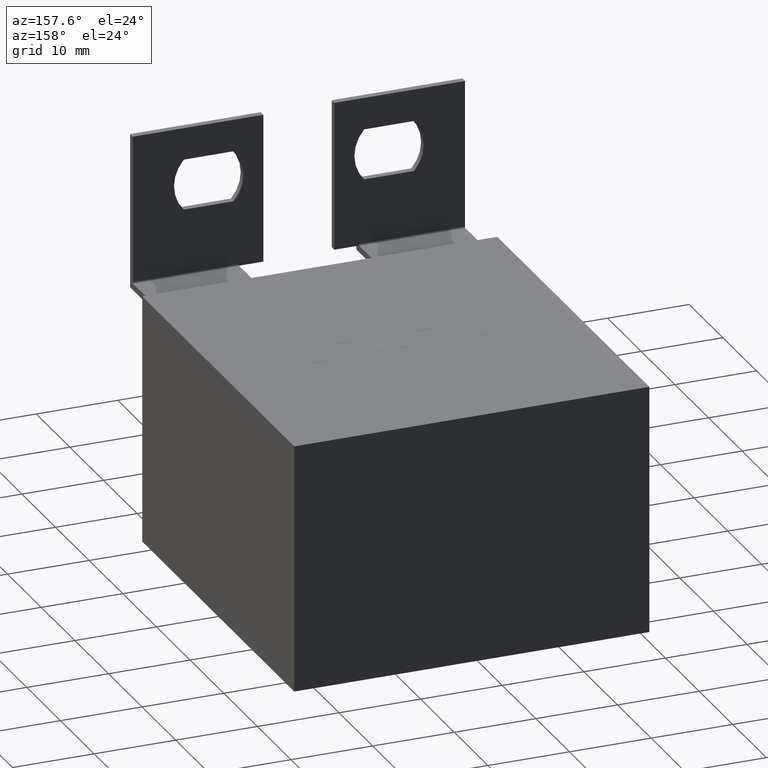
[diagram: clean part render]
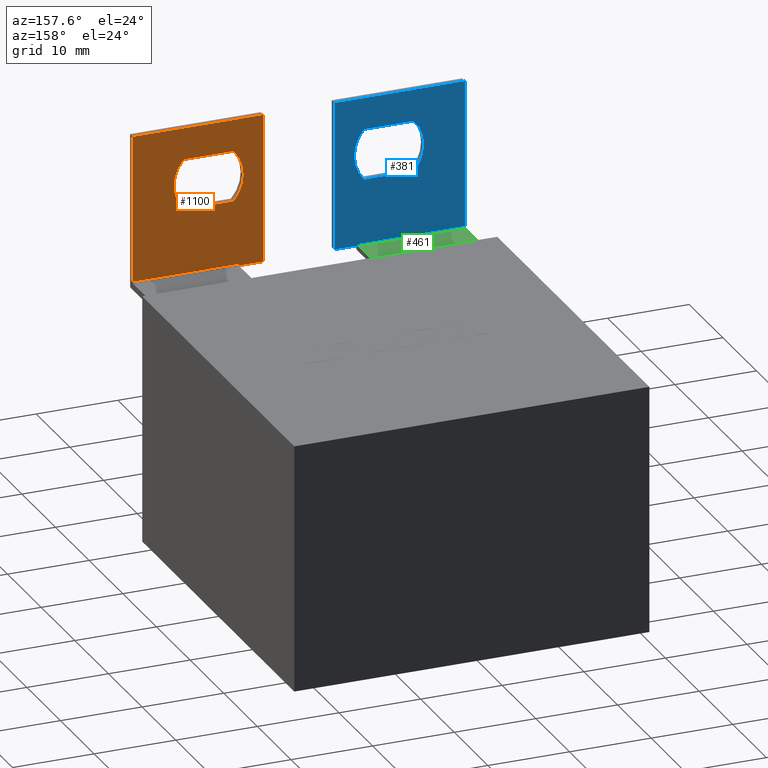
[diagram: same view with three faces highlighted in distinct colors, each labeled with its STEP entity id]
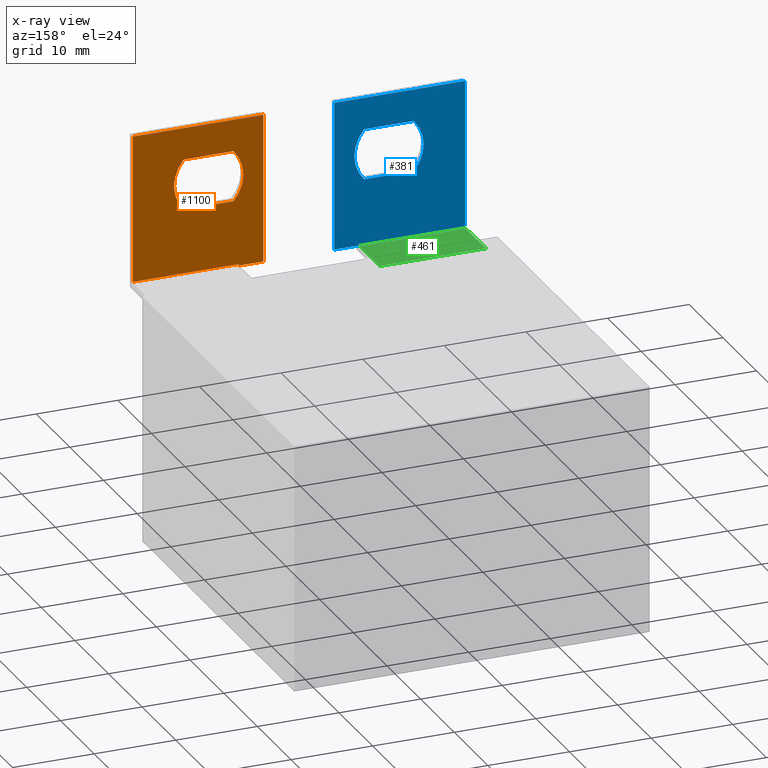
[diagram: x-ray of the same camera — body ghosted, the three highlighted faces saturated]
A machine part, auxiliary view with three faces highlighted in distinct colors.
The next image is the same camera in x-ray (body ghosted, the three faces saturated) — at least one of them is partly hidden behind the body in this view.
Their STEP definitions:

[orange] entity #1100 — the highlighted planar face has unit normal (0, 1, -0).
#14 = DIRECTION ( 'NONE',  ( 0.0000000000000000000, 1.000000000000000000, -0.0000000000000000000 ) ) ;
#19 = DIRECTION ( 'NONE',  ( 0.0000000000000000000, 0.0000000000000000000, -1.000000000000000000 ) ) ;
#24 = ORIENTED_EDGE ( 'NONE', *, *, #2436, .T. ) ;
#31 = AXIS2_PLACEMENT_3D ( 'NONE', #2444, #1611, #19 ) ;
#34 = DIRECTION ( 'NONE',  ( -0.0000000000000000000, -1.000000000000000000, -0.0000000000000000000 ) ) ;
#58 = ORIENTED_EDGE ( 'NONE', *, *, #3076, .F. ) ;
#80 = VECTOR ( 'NONE', #2003, 1000.000000000000000 ) ;
#167 = ORIENTED_EDGE ( 'NONE', *, *, #785, .T. ) ;
#221 = VERTEX_POINT ( 'NONE', #2238 ) ;
#263 = EDGE_CURVE ( 'NONE', #3337, #2440, #1299, .T. ) ;
#300 = ORIENTED_EDGE ( 'NONE', *, *, #507, .T. ) ;
#305 = CARTESIAN_POINT ( 'NONE',  ( 42.10000000000000900, -6.200000000000000200, 47.39999999999999900 ) ) ;
#445 = AXIS2_PLACEMENT_3D ( 'NONE', #305, #14, #3237 ) ;
#458 = CARTESIAN_POINT ( 'NONE',  ( 42.10000000000000900, -6.200000000000000200, 47.39999999999999900 ) ) ;
#507 = EDGE_CURVE ( 'NONE', #1280, #221, #3153, .T. ) ;
#554 = CARTESIAN_POINT ( 'NONE',  ( 35.84999999999999400, -6.200000000000000200, 37.29999999999999700 ) ) ;
#564 = DIRECTION ( 'NONE',  ( 0.0000000000000000000, 0.0000000000000000000, 1.000000000000000000 ) ) ;
#591 = FACE_OUTER_BOUND ( 'NONE', #1460, .T. ) ;
#607 = EDGE_CURVE ( 'NONE', #2243, #1280, #2029, .T. ) ;
#687 = CARTESIAN_POINT ( 'NONE',  ( 26.10000000000000500, -6.200000000000000200, 47.39999999999999900 ) ) ;
#706 = DIRECTION ( 'NONE',  ( -1.000000000000000000, 0.0000000000000000000, 0.0000000000000000000 ) ) ;
#738 = DIRECTION ( 'NONE',  ( 1.000000000000000000, -0.0000000000000000000, -0.0000000000000000000 ) ) ;
#768 = EDGE_CURVE ( 'NONE', #2440, #1434, #993, .T. ) ;
#772 = ORIENTED_EDGE ( 'NONE', *, *, #263, .T. ) ;
#785 = EDGE_CURVE ( 'NONE', #1434, #2998, #812, .T. ) ;
#812 = LINE ( 'NONE', #1773, #80 ) ;
#881 = CARTESIAN_POINT ( 'NONE',  ( 26.10000000000000500, -6.200000000000000200, 47.39999999999999900 ) ) ;
#904 = DIRECTION ( 'NONE',  ( -0.0000000000000000000, -0.0000000000000000000, -1.000000000000000000 ) ) ;
#939 = EDGE_CURVE ( 'NONE', #3361, #3337, #1894, .T. ) ;
#960 = DIRECTION ( 'NONE',  ( -1.000000000000000000, 0.0000000000000000000, 2.668805347656626700E-016 ) ) ;
#988 = DIRECTION ( 'NONE',  ( -0.0000000000000000000, -0.0000000000000000000, -1.000000000000000000 ) ) ;
#993 = LINE ( 'NONE', #2028, #2342 ) ;
#1081 = LINE ( 'NONE', #3435, #1913 ) ;
#1084 = CARTESIAN_POINT ( 'NONE',  ( 33.15416666666666900, -6.200000000000000200, 40.39999999999999900 ) ) ;
#1100 = ADVANCED_FACE ( 'NONE', ( #591, #3108 ), #3093, .T. ) ;
#1108 = ORIENTED_EDGE ( 'NONE', *, *, #2634, .T. ) ;
#1280 = VERTEX_POINT ( 'NONE', #2571 ) ;
#1298 = DIRECTION ( 'NONE',  ( 1.000000000000000000, -0.0000000000000000000, -0.0000000000000000000 ) ) ;
#1299 = LINE ( 'NONE', #3437, #2628 ) ;
#1335 = ORIENTED_EDGE ( 'NONE', *, *, #607, .T. ) ;
#1434 = VERTEX_POINT ( 'NONE', #2604 ) ;
#1460 = EDGE_LOOP ( 'NONE', ( #772, #2118, #167, #58, #3096, #2741 ) ) ;
#1501 = CARTESIAN_POINT ( 'NONE',  ( 29.75000000000000000, -6.200000000000000200, 43.50000000000000000 ) ) ;
#1504 = VECTOR ( 'NONE', #904, 1000.000000000000000 ) ;
#1545 = LINE ( 'NONE', #881, #1504 ) ;
#1611 = DIRECTION ( 'NONE',  ( -0.0000000000000000000, -1.000000000000000000, -0.0000000000000000000 ) ) ;
#1622 = DIRECTION ( 'NONE',  ( 1.000000000000000000, -0.0000000000000000000, -0.0000000000000000000 ) ) ;
#1694 = CARTESIAN_POINT ( 'NONE',  ( 26.10000000000000500, -6.200000000000000200, 29.19999999999999600 ) ) ;
#1731 = EDGE_CURVE ( 'NONE', #3361, #2881, #1545, .T. ) ;
#1773 = CARTESIAN_POINT ( 'NONE',  ( 29.09999999999999800, -6.200000000000000200, 28.39999999999999500 ) ) ;
#1835 = CIRCLE ( 'NONE', #31, 4.604166666666666100 ) ;
#1894 = LINE ( 'NONE', #458, #3112 ) ;
#1913 = VECTOR ( 'NONE', #1298, 1000.000000000000000 ) ;
#2003 = DIRECTION ( 'NONE',  ( 0.0000000000000000000, 0.0000000000000000000, -1.000000000000000000 ) ) ;
#2028 = CARTESIAN_POINT ( 'NONE',  ( 29.09999999999999800, -6.200000000000000200, 29.39999999999999900 ) ) ;
#2029 = CIRCLE ( 'NONE', #2640, 4.604166666666673200 ) ;
#2118 = ORIENTED_EDGE ( 'NONE', *, *, #768, .T. ) ;
#2238 = CARTESIAN_POINT ( 'NONE',  ( 35.84999999999999400, -6.200000000000000200, 37.29999999999999700 ) ) ;
#2243 = VERTEX_POINT ( 'NONE', #2809 ) ;
#2342 = VECTOR ( 'NONE', #960, 1000.000000000000000 ) ;
#2347 = VECTOR ( 'NONE', #1622, 1000.000000000000000 ) ;
#2408 = CARTESIAN_POINT ( 'NONE',  ( 42.10000000000000900, -6.200000000000000200, 47.39999999999999900 ) ) ;
#2436 = EDGE_CURVE ( 'NONE', #3240, #2243, #3098, .T. ) ;
#2440 = VERTEX_POINT ( 'NONE', #3148 ) ;
#2444 = CARTESIAN_POINT ( 'NONE',  ( 32.44583333333332600, -6.200000000000000200, 40.39999999999999900 ) ) ;
#2571 = CARTESIAN_POINT ( 'NONE',  ( 29.75000000000000000, -6.200000000000000200, 37.29999999999999700 ) ) ;
#2604 = CARTESIAN_POINT ( 'NONE',  ( 29.09999999999999800, -6.200000000000000200, 29.39999999999999900 ) ) ;
#2628 = VECTOR ( 'NONE', #988, 1000.000000000000000 ) ;
#2634 = EDGE_CURVE ( 'NONE', #221, #3240, #1835, .T. ) ;
#2640 = AXIS2_PLACEMENT_3D ( 'NONE', #1084, #34, #564 ) ;
#2741 = ORIENTED_EDGE ( 'NONE', *, *, #939, .T. ) ;
#2743 = EDGE_LOOP ( 'NONE', ( #24, #1335, #300, #1108 ) ) ;
#2809 = CARTESIAN_POINT ( 'NONE',  ( 29.75000000000000000, -6.200000000000000200, 43.50000000000000000 ) ) ;
#2881 = VERTEX_POINT ( 'NONE', #1694 ) ;
#2998 = VERTEX_POINT ( 'NONE', #3065 ) ;
#3065 = CARTESIAN_POINT ( 'NONE',  ( 29.09999999999999800, -6.200000000000000200, 29.19999999999999900 ) ) ;
#3076 = EDGE_CURVE ( 'NONE', #2881, #2998, #1081, .T. ) ;
#3093 = PLANE ( 'NONE',  #445 ) ;
#3096 = ORIENTED_EDGE ( 'NONE', *, *, #1731, .F. ) ;
#3098 = LINE ( 'NONE', #1501, #3216 ) ;
#3108 = FACE_BOUND ( 'NONE', #2743, .T. ) ;
#3112 = VECTOR ( 'NONE', #738, 1000.000000000000000 ) ;
#3148 = CARTESIAN_POINT ( 'NONE',  ( 42.10000000000000900, -6.200000000000000200, 29.39999999999999500 ) ) ;
#3153 = LINE ( 'NONE', #554, #2347 ) ;
#3212 = CARTESIAN_POINT ( 'NONE',  ( 35.84999999999999400, -6.200000000000000200, 43.50000000000000000 ) ) ;
#3216 = VECTOR ( 'NONE', #706, 1000.000000000000000 ) ;
#3237 = DIRECTION ( 'NONE',  ( 0.0000000000000000000, 0.0000000000000000000, 1.000000000000000000 ) ) ;
#3240 = VERTEX_POINT ( 'NONE', #3212 ) ;
#3337 = VERTEX_POINT ( 'NONE', #2408 ) ;
#3361 = VERTEX_POINT ( 'NONE', #687 ) ;
#3435 = CARTESIAN_POINT ( 'NONE',  ( 42.10000000000000900, -6.200000000000000200, 29.19999999999999600 ) ) ;
#3437 = CARTESIAN_POINT ( 'NONE',  ( 42.10000000000000900, -6.200000000000000200, 47.39999999999999900 ) ) ;

[blue] entity #381 — the highlighted planar face has unit normal (0, -1, 0).
#3 = DIRECTION ( 'NONE',  ( -0.0000000000000000000, -0.0000000000000000000, -1.000000000000000000 ) ) ;
#9 = EDGE_CURVE ( 'NONE', #250, #121, #390, .T. ) ;
#45 = VERTEX_POINT ( 'NONE', #800 ) ;
#57 = EDGE_CURVE ( 'NONE', #1212, #2051, #3489, .T. ) ;
#61 = FACE_OUTER_BOUND ( 'NONE', #854, .T. ) ;
#82 = VERTEX_POINT ( 'NONE', #259 ) ;
#121 = VERTEX_POINT ( 'NONE', #3079 ) ;
#180 = ORIENTED_EDGE ( 'NONE', *, *, #9, .F. ) ;
#225 = AXIS2_PLACEMENT_3D ( 'NONE', #637, #2013, #2787 ) ;
#250 = VERTEX_POINT ( 'NONE', #2563 ) ;
#259 = CARTESIAN_POINT ( 'NONE',  ( 17.39999999999999100, -6.200000000000000200, 47.39999999999999900 ) ) ;
#381 = ADVANCED_FACE ( 'NONE', ( #457, #61 ), #3161, .F. ) ;
#390 = LINE ( 'NONE', #2473, #3119 ) ;
#457 = FACE_BOUND ( 'NONE', #3415, .T. ) ;
#481 = VECTOR ( 'NONE', #1627, 1000.000000000000000 ) ;
#491 = VECTOR ( 'NONE', #3285, 1000.000000000000000 ) ;
#503 = LINE ( 'NONE', #891, #1055 ) ;
#506 = ORIENTED_EDGE ( 'NONE', *, *, #1828, .F. ) ;
#572 = DIRECTION ( 'NONE',  ( -1.000000000000000000, 0.0000000000000000000, -2.668805347656626700E-016 ) ) ;
#609 = DIRECTION ( 'NONE',  ( -1.000000000000000000, -0.0000000000000000000, -0.0000000000000000000 ) ) ;
#637 = CARTESIAN_POINT ( 'NONE',  ( 10.34583333333332400, -6.200000000000000200, 40.39999999999999900 ) ) ;
#639 = VERTEX_POINT ( 'NONE', #1704 ) ;
#783 = VECTOR ( 'NONE', #572, 1000.000000000000000 ) ;
#800 = CARTESIAN_POINT ( 'NONE',  ( 14.40000000000000000, -6.200000000000000200, 29.39999999999999900 ) ) ;
#854 = EDGE_LOOP ( 'NONE', ( #877, #2526, #3459, #1287, #1139, #1567 ) ) ;
#877 = ORIENTED_EDGE ( 'NONE', *, *, #3483, .T. ) ;
#891 = CARTESIAN_POINT ( 'NONE',  ( 1.399999999999992100, -6.200000000000000200, 29.19999999999999600 ) ) ;
#917 = DIRECTION ( 'NONE',  ( 0.0000000000000000000, 0.0000000000000000000, -1.000000000000000000 ) ) ;
#1017 = CIRCLE ( 'NONE', #2997, 4.604166666666666100 ) ;
#1020 = VECTOR ( 'NONE', #3, 1000.000000000000000 ) ;
#1041 = CARTESIAN_POINT ( 'NONE',  ( 1.399999999999992100, -6.200000000000000200, 47.39999999999999900 ) ) ;
#1055 = VECTOR ( 'NONE', #3255, 1000.000000000000000 ) ;
#1061 = VERTEX_POINT ( 'NONE', #3055 ) ;
#1076 = LINE ( 'NONE', #2053, #3242 ) ;
#1133 = LINE ( 'NONE', #2977, #783 ) ;
#1139 = ORIENTED_EDGE ( 'NONE', *, *, #1599, .T. ) ;
#1187 = ORIENTED_EDGE ( 'NONE', *, *, #1759, .F. ) ;
#1212 = VERTEX_POINT ( 'NONE', #2262 ) ;
#1262 = AXIS2_PLACEMENT_3D ( 'NONE', #1588, #2672, #1822 ) ;
#1287 = ORIENTED_EDGE ( 'NONE', *, *, #3265, .F. ) ;
#1429 = CARTESIAN_POINT ( 'NONE',  ( 1.399999999999992100, -6.200000000000000200, 47.39999999999999900 ) ) ;
#1435 = DIRECTION ( 'NONE',  ( 0.0000000000000000000, 1.000000000000000000, -0.0000000000000000000 ) ) ;
#1567 = ORIENTED_EDGE ( 'NONE', *, *, #2109, .T. ) ;
#1588 = CARTESIAN_POINT ( 'NONE',  ( 1.399999999999992100, -6.200000000000000200, 47.39999999999999900 ) ) ;
#1595 = CARTESIAN_POINT ( 'NONE',  ( 17.39999999999999100, -6.200000000000000200, 47.39999999999999900 ) ) ;
#1599 = EDGE_CURVE ( 'NONE', #82, #1061, #2016, .T. ) ;
#1627 = DIRECTION ( 'NONE',  ( 1.000000000000000000, -0.0000000000000000000, -0.0000000000000000000 ) ) ;
#1704 = CARTESIAN_POINT ( 'NONE',  ( 14.40000000000000000, -6.200000000000000200, 29.19999999999999600 ) ) ;
#1759 = EDGE_CURVE ( 'NONE', #121, #1212, #1017, .T. ) ;
#1822 = DIRECTION ( 'NONE',  ( 0.0000000000000000000, -0.0000000000000000000, -1.000000000000000000 ) ) ;
#1828 = EDGE_CURVE ( 'NONE', #2051, #250, #3176, .T. ) ;
#1988 = EDGE_CURVE ( 'NONE', #2986, #2452, #2292, .T. ) ;
#2013 = DIRECTION ( 'NONE',  ( 0.0000000000000000000, 1.000000000000000000, 0.0000000000000000000 ) ) ;
#2016 = LINE ( 'NONE', #1595, #1020 ) ;
#2051 = VERTEX_POINT ( 'NONE', #2120 ) ;
#2053 = CARTESIAN_POINT ( 'NONE',  ( 14.40000000000000000, -6.200000000000000200, 28.39999999999999500 ) ) ;
#2072 = CARTESIAN_POINT ( 'NONE',  ( 1.399999999999992100, -6.200000000000000200, 29.39999999999999500 ) ) ;
#2109 = EDGE_CURVE ( 'NONE', #1061, #639, #503, .T. ) ;
#2120 = CARTESIAN_POINT ( 'NONE',  ( 13.75000000000000000, -6.200000000000000200, 43.50000000000000000 ) ) ;
#2129 = CARTESIAN_POINT ( 'NONE',  ( 13.75000000000000000, -6.200000000000000200, 43.50000000000000000 ) ) ;
#2262 = CARTESIAN_POINT ( 'NONE',  ( 7.650000000000001200, -6.200000000000000200, 43.50000000000000000 ) ) ;
#2292 = LINE ( 'NONE', #1041, #2930 ) ;
#2372 = DIRECTION ( 'NONE',  ( -0.0000000000000000000, -0.0000000000000000000, -1.000000000000000000 ) ) ;
#2452 = VERTEX_POINT ( 'NONE', #2072 ) ;
#2473 = CARTESIAN_POINT ( 'NONE',  ( 7.650000000000000400, -6.200000000000000200, 37.29999999999999700 ) ) ;
#2526 = ORIENTED_EDGE ( 'NONE', *, *, #2768, .T. ) ;
#2563 = CARTESIAN_POINT ( 'NONE',  ( 13.75000000000000000, -6.200000000000000200, 37.29999999999999700 ) ) ;
#2672 = DIRECTION ( 'NONE',  ( 0.0000000000000000000, -1.000000000000000000, 0.0000000000000000000 ) ) ;
#2768 = EDGE_CURVE ( 'NONE', #45, #2452, #1133, .T. ) ;
#2787 = DIRECTION ( 'NONE',  ( 0.0000000000000000000, 0.0000000000000000000, 1.000000000000000000 ) ) ;
#2841 = CARTESIAN_POINT ( 'NONE',  ( 1.399999999999992100, -6.200000000000000200, 47.39999999999999900 ) ) ;
#2858 = DIRECTION ( 'NONE',  ( 0.0000000000000000000, 0.0000000000000000000, 1.000000000000000000 ) ) ;
#2930 = VECTOR ( 'NONE', #2372, 1000.000000000000000 ) ;
#2977 = CARTESIAN_POINT ( 'NONE',  ( 1.399999999999992100, -6.200000000000000200, 29.39999999999999500 ) ) ;
#2986 = VERTEX_POINT ( 'NONE', #2841 ) ;
#2996 = ORIENTED_EDGE ( 'NONE', *, *, #57, .F. ) ;
#2997 = AXIS2_PLACEMENT_3D ( 'NONE', #3084, #1435, #917 ) ;
#3055 = CARTESIAN_POINT ( 'NONE',  ( 17.39999999999999100, -6.200000000000000200, 29.19999999999999600 ) ) ;
#3079 = CARTESIAN_POINT ( 'NONE',  ( 7.650000000000000400, -6.200000000000000200, 37.29999999999999700 ) ) ;
#3084 = CARTESIAN_POINT ( 'NONE',  ( 11.05416666666667400, -6.200000000000000200, 40.39999999999999900 ) ) ;
#3119 = VECTOR ( 'NONE', #609, 1000.000000000000000 ) ;
#3161 = PLANE ( 'NONE',  #1262 ) ;
#3176 = CIRCLE ( 'NONE', #225, 4.604166666666673200 ) ;
#3242 = VECTOR ( 'NONE', #2858, 1000.000000000000000 ) ;
#3246 = LINE ( 'NONE', #1429, #491 ) ;
#3255 = DIRECTION ( 'NONE',  ( -1.000000000000000000, -0.0000000000000000000, -0.0000000000000000000 ) ) ;
#3265 = EDGE_CURVE ( 'NONE', #82, #2986, #3246, .T. ) ;
#3285 = DIRECTION ( 'NONE',  ( -1.000000000000000000, -0.0000000000000000000, -0.0000000000000000000 ) ) ;
#3415 = EDGE_LOOP ( 'NONE', ( #180, #506, #2996, #1187 ) ) ;
#3459 = ORIENTED_EDGE ( 'NONE', *, *, #1988, .F. ) ;
#3483 = EDGE_CURVE ( 'NONE', #639, #45, #1076, .T. ) ;
#3489 = LINE ( 'NONE', #2129, #481 ) ;

[green] entity #461 — the highlighted planar face has unit normal (0, 0, -1).
#41 = FACE_OUTER_BOUND ( 'NONE', #1046, .T. ) ;
#62 = CARTESIAN_POINT ( 'NONE',  ( 1.399999999999999700, -6.000000000000000000, 29.19999999999999600 ) ) ;
#79 = DIRECTION ( 'NONE',  ( -1.000000000000000000, -0.0000000000000000000, -2.668805347656626700E-016 ) ) ;
#110 = LINE ( 'NONE', #520, #797 ) ;
#294 = ORIENTED_EDGE ( 'NONE', *, *, #3230, .T. ) ;
#342 = EDGE_CURVE ( 'NONE', #2247, #2398, #987, .T. ) ;
#461 = ADVANCED_FACE ( 'NONE', ( #41 ), #501, .F. ) ;
#501 = PLANE ( 'NONE',  #708 ) ;
#520 = CARTESIAN_POINT ( 'NONE',  ( 1.399999999999999700, -7.000000000000000000, 29.19999999999999600 ) ) ;
#708 = AXIS2_PLACEMENT_3D ( 'NONE', #3469, #769, #2623 ) ;
#769 = DIRECTION ( 'NONE',  ( 2.668805347656626700E-016, 0.0000000000000000000, -1.000000000000000000 ) ) ;
#797 = VECTOR ( 'NONE', #3453, 1000.000000000000000 ) ;
#930 = CARTESIAN_POINT ( 'NONE',  ( 14.40000000000000000, 0.0000000000000000000, 29.19999999999999900 ) ) ;
#987 = LINE ( 'NONE', #2612, #1601 ) ;
#1046 = EDGE_LOOP ( 'NONE', ( #1785, #294, #1578, #2060 ) ) ;
#1070 = CARTESIAN_POINT ( 'NONE',  ( 1.399999999999999700, 0.0000000000000000000, 29.19999999999999600 ) ) ;
#1251 = DIRECTION ( 'NONE',  ( -0.0000000000000000000, 1.000000000000000000, -0.0000000000000000000 ) ) ;
#1468 = EDGE_CURVE ( 'NONE', #3292, #1640, #110, .T. ) ;
#1572 = VECTOR ( 'NONE', #1879, 1000.000000000000000 ) ;
#1578 = ORIENTED_EDGE ( 'NONE', *, *, #342, .T. ) ;
#1601 = VECTOR ( 'NONE', #1251, 1000.000000000000000 ) ;
#1640 = VERTEX_POINT ( 'NONE', #1070 ) ;
#1785 = ORIENTED_EDGE ( 'NONE', *, *, #1468, .F. ) ;
#1861 = CARTESIAN_POINT ( 'NONE',  ( 14.40000000000000000, -6.000000000000000000, 29.19999999999999900 ) ) ;
#1875 = VECTOR ( 'NONE', #79, 1000.000000000000000 ) ;
#1879 = DIRECTION ( 'NONE',  ( 1.000000000000000000, -0.0000000000000000000, 2.668805347656626700E-016 ) ) ;
#2060 = ORIENTED_EDGE ( 'NONE', *, *, #2908, .T. ) ;
#2247 = VERTEX_POINT ( 'NONE', #2797 ) ;
#2398 = VERTEX_POINT ( 'NONE', #930 ) ;
#2530 = LINE ( 'NONE', #1861, #1572 ) ;
#2612 = CARTESIAN_POINT ( 'NONE',  ( 14.40000000000000000, -7.000000000000000000, 29.19999999999999900 ) ) ;
#2623 = DIRECTION ( 'NONE',  ( -1.000000000000000000, 0.0000000000000000000, -2.668805347656626700E-016 ) ) ;
#2718 = LINE ( 'NONE', #3007, #1875 ) ;
#2797 = CARTESIAN_POINT ( 'NONE',  ( 14.40000000000000000, -6.000000000000000000, 29.19999999999999900 ) ) ;
#2908 = EDGE_CURVE ( 'NONE', #2398, #1640, #2718, .T. ) ;
#3007 = CARTESIAN_POINT ( 'NONE',  ( 1.399999999999999700, 0.0000000000000000000, 29.19999999999999600 ) ) ;
#3230 = EDGE_CURVE ( 'NONE', #3292, #2247, #2530, .T. ) ;
#3292 = VERTEX_POINT ( 'NONE', #62 ) ;
#3453 = DIRECTION ( 'NONE',  ( -0.0000000000000000000, 1.000000000000000000, -0.0000000000000000000 ) ) ;
#3469 = CARTESIAN_POINT ( 'NONE',  ( 1.399999999999999700, -7.000000000000000000, 29.19999999999999600 ) ) ;